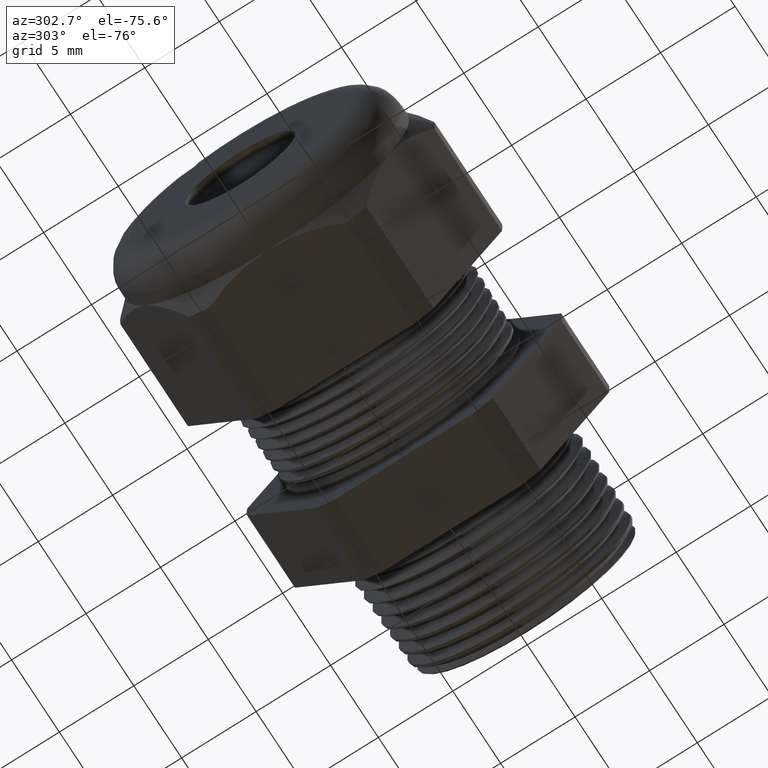
[diagram: clean part render]
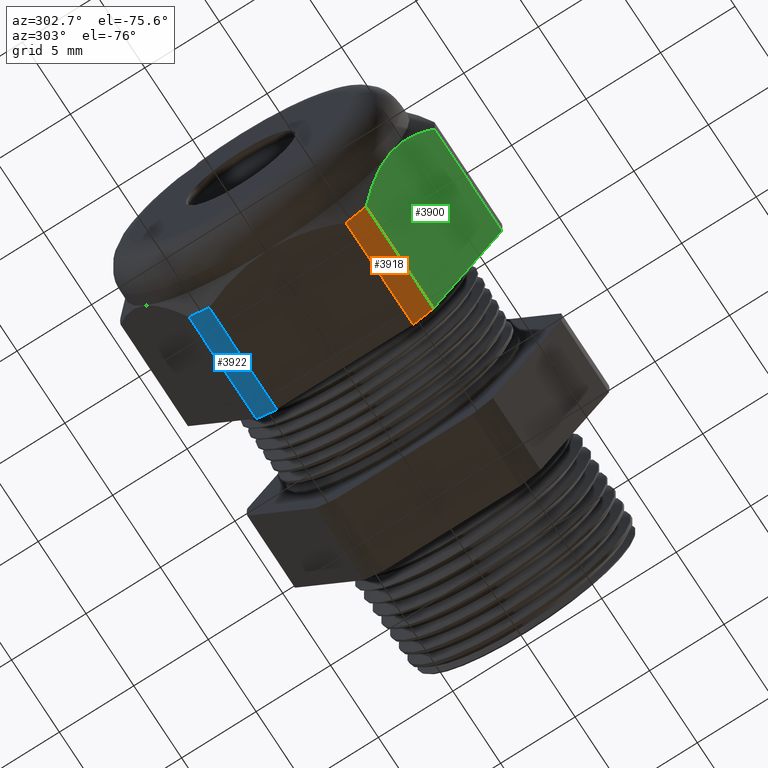
[diagram: same view with three faces highlighted in distinct colors, each labeled with its STEP entity id]
A machine part, auxiliary view with three faces highlighted in distinct colors.
Their STEP definitions:

[orange] entity #3918 — the highlighted cylindrical surface (partial cylindrical patch) has radius 10.5727 mm, axis along (-1, 0, 0).
#3202 = CARTESIAN_POINT ( 'NONE',  ( -0.7508661417322833900, -0.2344281053908202100, -0.3439586107409880500 ) ) ;
#3203 = CARTESIAN_POINT ( 'NONE',  ( -1.028513779527559200, -0.2344281053908201800, -0.3439586107409879900 ) ) ;
#3215 = DIRECTION ( 'NONE',  ( -1.000000000000000000, 0.0000000000000000000, 0.0000000000000000000 ) ) ;
#3216 = VECTOR ( 'NONE', #3215, 39.37007874015748100 ) ;
#3217 = CARTESIAN_POINT ( 'NONE',  ( 0.0000000000000000000, -0.2344281053908202100, -0.3439586107409880500 ) ) ;
#3218 = LINE ( 'NONE', #3217, #3216 ) ;
#3226 = DIRECTION ( 'NONE',  ( -1.000000000000000000, 0.0000000000000000000, 0.0000000000000000000 ) ) ;
#3227 = VECTOR ( 'NONE', #3226, 39.37007874015748100 ) ;
#3228 = CARTESIAN_POINT ( 'NONE',  ( 0.0000000000000000000, -0.1806628420566883900, -0.3750000000000001100 ) ) ;
#3229 = LINE ( 'NONE', #3228, #3227 ) ;
#3231 = CARTESIAN_POINT ( 'NONE',  ( -0.7508661417322833900, -0.1806628420566883900, -0.3750000000000001100 ) ) ;
#3232 = DIRECTION ( 'NONE',  ( 0.0000000000000000000, 0.0000000000000000000, -1.000000000000000000 ) ) ;
#3233 = DIRECTION ( 'NONE',  ( 1.000000000000000000, 0.0000000000000000000, 0.0000000000000000000 ) ) ;
#3234 = CARTESIAN_POINT ( 'NONE',  ( -0.7508661417322833900, 0.0000000000000000000, 0.0000000000000000000 ) ) ;
#3235 = AXIS2_PLACEMENT_3D ( 'NONE', #3234, #3233, #3232 ) ;
#3240 = CIRCLE ( 'NONE', #3235, 0.4162500000000000100 ) ;
#3262 = DIRECTION ( 'NONE',  ( 0.0000000000000000000, 0.0000000000000000000, 1.000000000000000000 ) ) ;
#3263 = DIRECTION ( 'NONE',  ( -1.000000000000000000, 0.0000000000000000000, 0.0000000000000000000 ) ) ;
#3264 = CARTESIAN_POINT ( 'NONE',  ( 0.0000000000000000000, 0.0000000000000000000, 0.0000000000000000000 ) ) ;
#3265 = AXIS2_PLACEMENT_3D ( 'NONE', #3264, #3263, #3262 ) ;
#3267 = CYLINDRICAL_SURFACE ( 'NONE', #3265, 0.4162500000000000100 ) ;
#3268 = FACE_OUTER_BOUND ( 'NONE', #3893, .T. ) ;
#3269 = DIRECTION ( 'NONE',  ( 0.0000000000000000000, 0.0000000000000000000, -1.000000000000000000 ) ) ;
#3270 = DIRECTION ( 'NONE',  ( 1.000000000000000000, 0.0000000000000000000, 0.0000000000000000000 ) ) ;
#3271 = CARTESIAN_POINT ( 'NONE',  ( -1.028513779527559200, 0.0000000000000000000, 0.0000000000000000000 ) ) ;
#3272 = AXIS2_PLACEMENT_3D ( 'NONE', #3271, #3270, #3269 ) ;
#3273 = CIRCLE ( 'NONE', #3272, 0.4162500000000000100 ) ;
#3285 = CARTESIAN_POINT ( 'NONE',  ( -1.028513779527559200, -0.1806628420566883700, -0.3750000000000001100 ) ) ;
#3881 = EDGE_CURVE ( 'NONE', #3890, #3888, #3218, .T. ) ;
#3888 = VERTEX_POINT ( 'NONE', #3203 ) ;
#3890 = VERTEX_POINT ( 'NONE', #3202 ) ;
#3893 = EDGE_LOOP ( 'NONE', ( #3917, #3919, #3899, #3908 ) ) ;
#3899 = ORIENTED_EDGE ( 'NONE', *, *, #3907, .F. ) ;
#3904 = EDGE_CURVE ( 'NONE', #3890, #3905, #3240, .T. ) ;
#3905 = VERTEX_POINT ( 'NONE', #3231 ) ;
#3907 = EDGE_CURVE ( 'NONE', #3905, #3910, #3229, .T. ) ;
#3908 = ORIENTED_EDGE ( 'NONE', *, *, #3904, .F. ) ;
#3910 = VERTEX_POINT ( 'NONE', #3285 ) ;
#3916 = EDGE_CURVE ( 'NONE', #3888, #3910, #3273, .T. ) ;
#3917 = ORIENTED_EDGE ( 'NONE', *, *, #3881, .T. ) ;
#3918 = ADVANCED_FACE ( 'NONE', ( #3268 ), #3267, .T. ) ;
#3919 = ORIENTED_EDGE ( 'NONE', *, *, #3916, .T. ) ;

[blue] entity #3922 — the highlighted cylindrical surface (partial cylindrical patch) has radius 10.5727 mm, axis along (-1, 0, 0).
#3259 = CARTESIAN_POINT ( 'NONE',  ( 0.0000000000000000000, 0.0000000000000000000, 0.0000000000000000000 ) ) ;
#3260 = CYLINDRICAL_SURFACE ( 'NONE', #3310, 0.4162500000000000100 ) ;
#3261 = FACE_OUTER_BOUND ( 'NONE', #3920, .T. ) ;
#3266 = DIRECTION ( 'NONE',  ( -1.000000000000000000, 0.0000000000000000000, 0.0000000000000000000 ) ) ;
#3300 = DIRECTION ( 'NONE',  ( -1.000000000000000000, 0.0000000000000000000, 0.0000000000000000000 ) ) ;
#3301 = VECTOR ( 'NONE', #3300, 39.37007874015748100 ) ;
#3302 = CARTESIAN_POINT ( 'NONE',  ( 0.0000000000000000000, 0.1806628420566884800, -0.3750000000000001100 ) ) ;
#3303 = LINE ( 'NONE', #3302, #3301 ) ;
#3304 = CARTESIAN_POINT ( 'NONE',  ( -1.028513779527559200, 0.1806628420566884200, -0.3750000000000000600 ) ) ;
#3305 = CARTESIAN_POINT ( 'NONE',  ( -0.7508661417322833900, 0.1806628420566884800, -0.3750000000000001100 ) ) ;
#3309 = DIRECTION ( 'NONE',  ( 0.0000000000000000000, 0.0000000000000000000, 1.000000000000000000 ) ) ;
#3310 = AXIS2_PLACEMENT_3D ( 'NONE', #3259, #3266, #3309 ) ;
#3312 = DIRECTION ( 'NONE',  ( -1.000000000000000000, 0.0000000000000000000, 0.0000000000000000000 ) ) ;
#3313 = VECTOR ( 'NONE', #3312, 39.37007874015748100 ) ;
#3314 = CARTESIAN_POINT ( 'NONE',  ( 0.0000000000000000000, 0.2344281053908202900, -0.3439586107409879900 ) ) ;
#3315 = LINE ( 'NONE', #3314, #3313 ) ;
#3351 = DIRECTION ( 'NONE',  ( 0.0000000000000000000, 0.0000000000000000000, -1.000000000000000000 ) ) ;
#3352 = DIRECTION ( 'NONE',  ( 1.000000000000000000, 0.0000000000000000000, 0.0000000000000000000 ) ) ;
#3353 = CARTESIAN_POINT ( 'NONE',  ( -1.028513779527559200, 0.0000000000000000000, 0.0000000000000000000 ) ) ;
#3354 = AXIS2_PLACEMENT_3D ( 'NONE', #3353, #3352, #3351 ) ;
#3355 = CIRCLE ( 'NONE', #3354, 0.4162500000000000100 ) ;
#3363 = CARTESIAN_POINT ( 'NONE',  ( -1.028513779527559200, 0.2344281053908202900, -0.3439586107409879900 ) ) ;
#3364 = CARTESIAN_POINT ( 'NONE',  ( -0.7508661417322833900, 0.2344281053908202900, -0.3439586107409879900 ) ) ;
#3371 = DIRECTION ( 'NONE',  ( 0.0000000000000000000, 0.0000000000000000000, -1.000000000000000000 ) ) ;
#3372 = DIRECTION ( 'NONE',  ( 1.000000000000000000, 0.0000000000000000000, 0.0000000000000000000 ) ) ;
#3373 = CARTESIAN_POINT ( 'NONE',  ( -0.7508661417322833900, 0.0000000000000000000, 0.0000000000000000000 ) ) ;
#3374 = AXIS2_PLACEMENT_3D ( 'NONE', #3373, #3372, #3371 ) ;
#3375 = CIRCLE ( 'NONE', #3374, 0.4162500000000000100 ) ;
#3920 = EDGE_LOOP ( 'NONE', ( #3921, #3943, #3956, #3953 ) ) ;
#3921 = ORIENTED_EDGE ( 'NONE', *, *, #3929, .T. ) ;
#3922 = ADVANCED_FACE ( 'NONE', ( #3261 ), #3260, .T. ) ;
#3926 = VERTEX_POINT ( 'NONE', #3305 ) ;
#3927 = VERTEX_POINT ( 'NONE', #3304 ) ;
#3929 = EDGE_CURVE ( 'NONE', #3926, #3927, #3303, .T. ) ;
#3943 = ORIENTED_EDGE ( 'NONE', *, *, #3962, .T. ) ;
#3947 = EDGE_CURVE ( 'NONE', #3954, #3957, #3315, .T. ) ;
#3948 = EDGE_CURVE ( 'NONE', #3926, #3954, #3375, .T. ) ;
#3953 = ORIENTED_EDGE ( 'NONE', *, *, #3948, .F. ) ;
#3954 = VERTEX_POINT ( 'NONE', #3364 ) ;
#3956 = ORIENTED_EDGE ( 'NONE', *, *, #3947, .F. ) ;
#3957 = VERTEX_POINT ( 'NONE', #3363 ) ;
#3962 = EDGE_CURVE ( 'NONE', #3927, #3957, #3355, .T. ) ;

[green] entity #3900 — the highlighted planar face has unit normal (0, -0.866, -0.5).
#81 = EDGE_LOOP ( 'NONE', ( #3898, #3901, #3897, #3887, #3886 ) ) ;
#83 = VERTEX_POINT ( 'NONE', #1251 ) ;
#86 = EDGE_CURVE ( 'NONE', #83, #87, #1245, .T. ) ;
#87 = VERTEX_POINT ( 'NONE', #1241 ) ;
#1241 = CARTESIAN_POINT ( 'NONE',  ( -1.028513779527559200, -0.4150909474475088000, -0.03104138925901237700 ) ) ;
#1242 = DIRECTION ( 'NONE',  ( -1.000000000000000000, 0.0000000000000000000, 0.0000000000000000000 ) ) ;
#1243 = VECTOR ( 'NONE', #1242, 39.37007874015748100 ) ;
#1244 = CARTESIAN_POINT ( 'NONE',  ( 0.0000000000000000000, -0.4150909474475088000, -0.03104138925901237000 ) ) ;
#1245 = LINE ( 'NONE', #1244, #1243 ) ;
#1251 = CARTESIAN_POINT ( 'NONE',  ( -0.7508661417322833900, -0.4150909474475088000, -0.03104138925901237000 ) ) ;
#3202 = CARTESIAN_POINT ( 'NONE',  ( -0.7508661417322833900, -0.2344281053908202100, -0.3439586107409880500 ) ) ;
#3203 = CARTESIAN_POINT ( 'NONE',  ( -1.028513779527559200, -0.2344281053908201800, -0.3439586107409879900 ) ) ;
#3204 = DIRECTION ( 'NONE',  ( 0.0000000000000000000, 0.5000000000000002200, -0.8660254037844384900 ) ) ;
#3205 = VECTOR ( 'NONE', #3204, 39.37007874015748900 ) ;
#3206 = CARTESIAN_POINT ( 'NONE',  ( -1.028513779527559200, -0.2344281053908201800, -0.3439586107409879900 ) ) ;
#3207 = CARTESIAN_POINT ( 'NONE',  ( -1.041003202145915500, -0.2488160174420975000, -0.3190380160533434200 ) ) ;
#3208 = CARTESIAN_POINT ( 'NONE',  ( -1.051459219999150200, -0.2636869420682234100, -0.2932808190453660100 ) ) ;
#3209 = CARTESIAN_POINT ( 'NONE',  ( -1.065817769005222800, -0.2938118100972367800, -0.2411030170478076800 ) ) ;
#3210 = CARTESIAN_POINT ( 'NONE',  ( -1.069763779527558500, -0.3091297520026593500, -0.2145715634002272300 ) ) ;
#3211 = CARTESIAN_POINT ( 'NONE',  ( -1.069763779527559200, -0.3247595264191645600, -0.1875000000000001900 ) ) ;
#3212 = CARTESIAN_POINT ( 'NONE',  ( -0.7508661417322833900, -0.2460095264191644600, -0.3238990010960492400 ) ) ;
#3213 = LINE ( 'NONE', #3212, #3205 ) ;
#3214 = B_SPLINE_CURVE_WITH_KNOTS ( 'NONE', 3,
 ( #3211, #3210, #3209, #3208, #3207, #3206 ),
 .UNSPECIFIED., .F., .F.,
 ( 4, 2, 4 ),
 ( 0.004709976344604660200, 0.007063225540252129700, 0.009416474735899599300 ),
 .UNSPECIFIED. ) ;
#3215 = DIRECTION ( 'NONE',  ( -1.000000000000000000, 0.0000000000000000000, 0.0000000000000000000 ) ) ;
#3216 = VECTOR ( 'NONE', #3215, 39.37007874015748100 ) ;
#3217 = CARTESIAN_POINT ( 'NONE',  ( 0.0000000000000000000, -0.2344281053908202100, -0.3439586107409880500 ) ) ;
#3218 = LINE ( 'NONE', #3217, #3216 ) ;
#3243 = DIRECTION ( 'NONE',  ( 0.0000000000000000000, 0.5000000000000002200, -0.8660254037844384900 ) ) ;
#3244 = DIRECTION ( 'NONE',  ( 0.0000000000000000000, -0.8660254037844386000, -0.5000000000000003300 ) ) ;
#3245 = CARTESIAN_POINT ( 'NONE',  ( 0.0000000000000000000, -0.2344281053908202900, -0.3439586107409879900 ) ) ;
#3246 = AXIS2_PLACEMENT_3D ( 'NONE', #3245, #3244, #3243 ) ;
#3247 = PLANE ( 'NONE',  #3246 ) ;
#3248 = CARTESIAN_POINT ( 'NONE',  ( -1.069763779527559200, -0.3247595264191645600, -0.1875000000000001900 ) ) ;
#3249 = CARTESIAN_POINT ( 'NONE',  ( -1.069763779527559000, -0.3325797762507456400, -0.1739549299638197500 ) ) ;
#3250 = CARTESIAN_POINT ( 'NONE',  ( -1.068759730589041500, -0.3404835130999904200, -0.1602652561712736600 ) ) ;
#3251 = CARTESIAN_POINT ( 'NONE',  ( -1.064926254644834400, -0.3559303281390046000, -0.1335105877085819800 ) ) ;
#3252 = CARTESIAN_POINT ( 'NONE',  ( -1.062104445229484800, -0.3635409529853223500, -0.1203285987974131200 ) ) ;
#3253 = CARTESIAN_POINT ( 'NONE',  ( -1.051298346633054100, -0.3860811521420284800, -0.08128782864527751800 ) ) ;
#3254 = CARTESIAN_POINT ( 'NONE',  ( -1.040987746498826900, -0.4007208404219565500, -0.05593114473747132200 ) ) ;
#3255 = CARTESIAN_POINT ( 'NONE',  ( -1.028513779527559200, -0.4150909474475088000, -0.03104138925901237700 ) ) ;
#3256 = CARTESIAN_POINT ( 'NONE',  ( -1.069763779527559200, -0.3247595264191645600, -0.1875000000000001900 ) ) ;
#3257 = B_SPLINE_CURVE_WITH_KNOTS ( 'NONE', 3,
 ( #3255, #3254, #3253, #3252, #3251, #3250, #3249, #3248 ),
 .UNSPECIFIED., .F., .F.,
 ( 4, 2, 2, 4 ),
 ( 2.483253706013444600E-007, 0.002355112334987631300, 0.003532544339796146400, 0.004709976344604660200 ),
 .UNSPECIFIED. ) ;
#3258 = FACE_OUTER_BOUND ( 'NONE', #81, .T. ) ;
#3881 = EDGE_CURVE ( 'NONE', #3890, #3888, #3218, .T. ) ;
#3882 = EDGE_CURVE ( 'NONE', #3896, #3888, #3214, .T. ) ;
#3883 = EDGE_CURVE ( 'NONE', #83, #3890, #3213, .T. ) ;
#3886 = ORIENTED_EDGE ( 'NONE', *, *, #3883, .F. ) ;
#3887 = ORIENTED_EDGE ( 'NONE', *, *, #3881, .F. ) ;
#3888 = VERTEX_POINT ( 'NONE', #3203 ) ;
#3890 = VERTEX_POINT ( 'NONE', #3202 ) ;
#3894 = EDGE_CURVE ( 'NONE', #87, #3896, #3257, .T. ) ;
#3896 = VERTEX_POINT ( 'NONE', #3256 ) ;
#3897 = ORIENTED_EDGE ( 'NONE', *, *, #3882, .T. ) ;
#3898 = ORIENTED_EDGE ( 'NONE', *, *, #86, .T. ) ;
#3900 = ADVANCED_FACE ( 'NONE', ( #3258 ), #3247, .T. ) ;
#3901 = ORIENTED_EDGE ( 'NONE', *, *, #3894, .T. ) ;